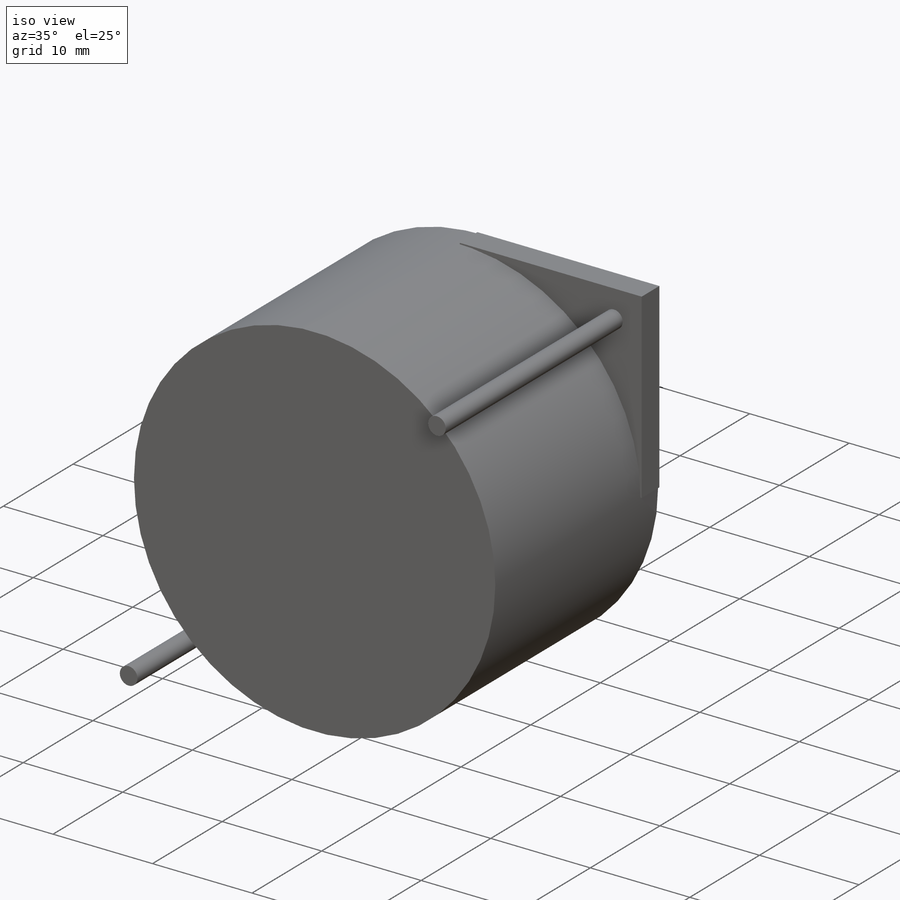
[diagram: iso view]
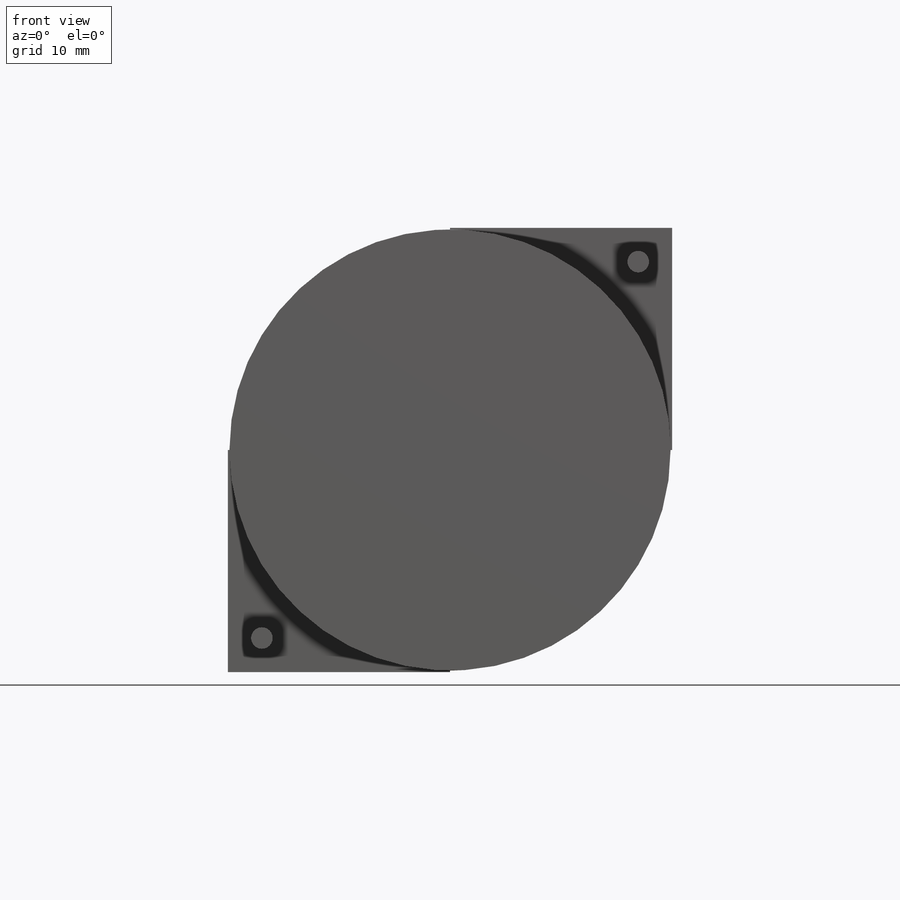
[diagram: front view]
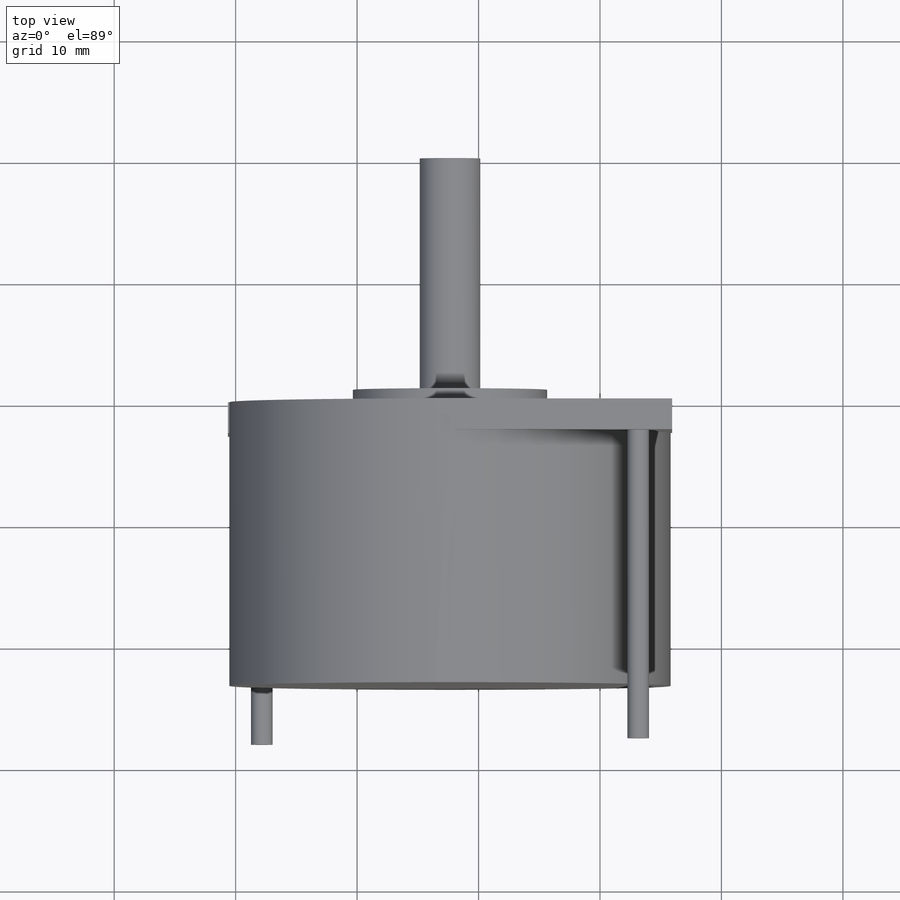
[diagram: top view]
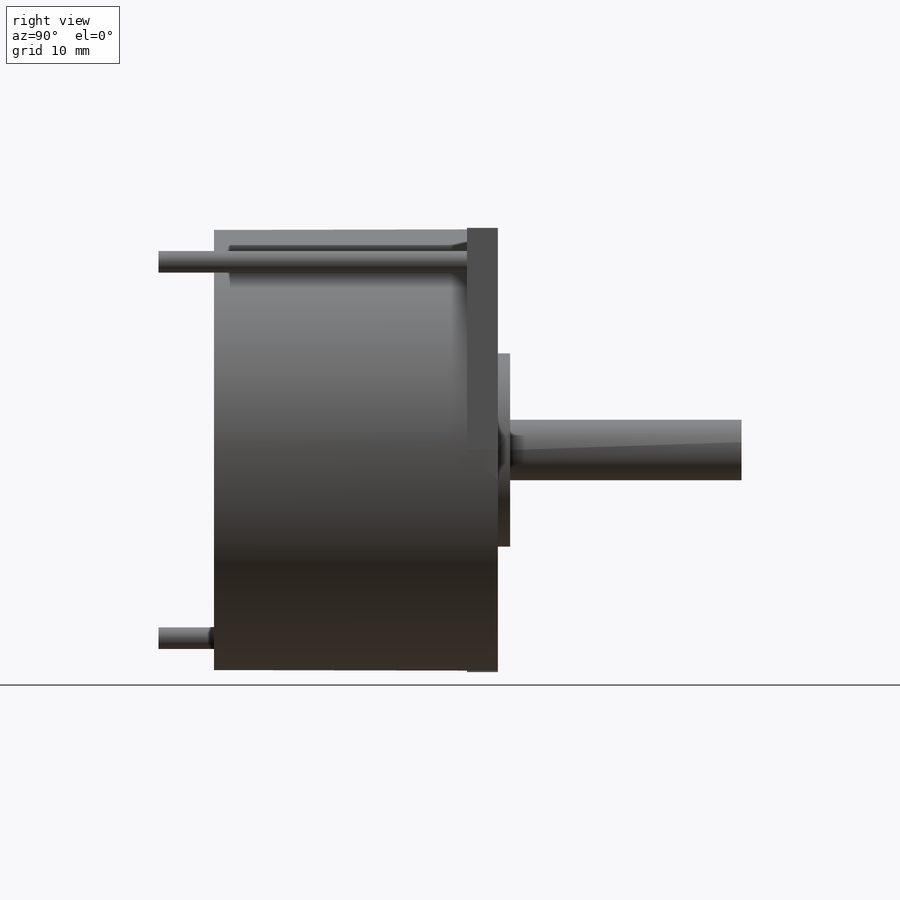
[diagram: right view]
SOLIDWORKS PART (.sldprt)
format: sldprt  version: not decoded by parser v0  size: 231,936 bytes
history: native  units: mm
features: sketch x6, extrude x5, material x1, cut_extrude x1 (+13 scaffold rows collapsed)
feature tree (26):
  scaffold x13  (default folders/planes/origin — collapsed)
  material  "Material <not specified>"
  sketch  "Sketch1"  dims[D1=36.576mm D2=36.576mm]
  extrude  "Boss-Extrude1"  Depth=2.54mm
  sketch  "Sketch2"  dims[c1.D4=1.778mm c1.D5=1.778mm c1.D1=30.988mm c1.D2=~22.182564mm c2.D2=45.0deg c3.D2=~18.506123mm c4.D2=45.0deg c4.D3=30.988mm c5.D3=45.0deg]
  extrude  "Boss-Extrude2"  Depth=25.4mm
  sketch  "Sketch3"  dims[D1=36.322mm]
  cut_extrude  "Cut-Extrude4"  [1 undecoded]
  sketch  "Sketch4"  dims[D1=16.002mm]
  extrude  "Boss-Extrude3"  Depth=1.016mm
  sketch  "Sketch5"  dims[D1=4.9911mm]
  extrude  "Boss-Extrude4"  Depth=19.05mm
  sketch  "Sketch6"  dims[D1=36.322mm]
  extrude  "Boss-Extrude5"  Depth=20.828mm
decode coverage: 11 of 12 modeling features carry decoded parameters
note: ~ marks probable driven/reference dimensions
note: 1 parameter value undecoded
note: suppression state not decoded; provenance and decode notes live in map.json
